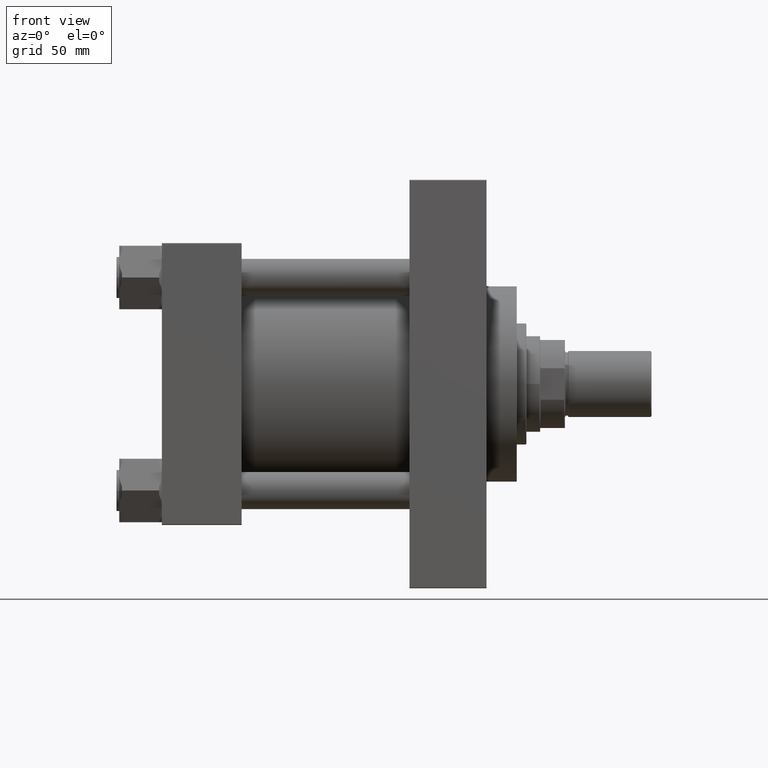
[diagram: clean part render]
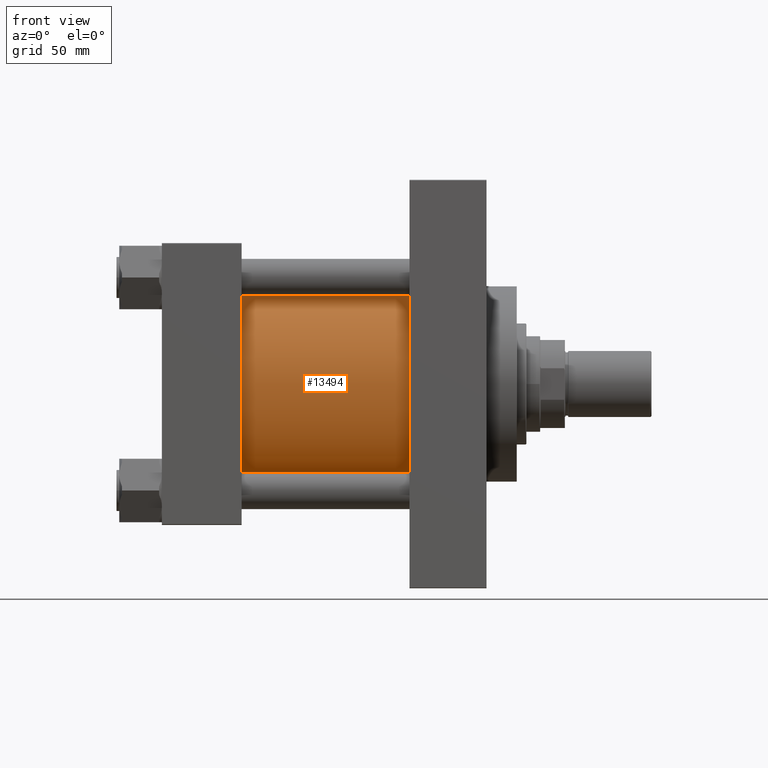
[diagram: same view with one face highlighted and labeled with its STEP entity id]
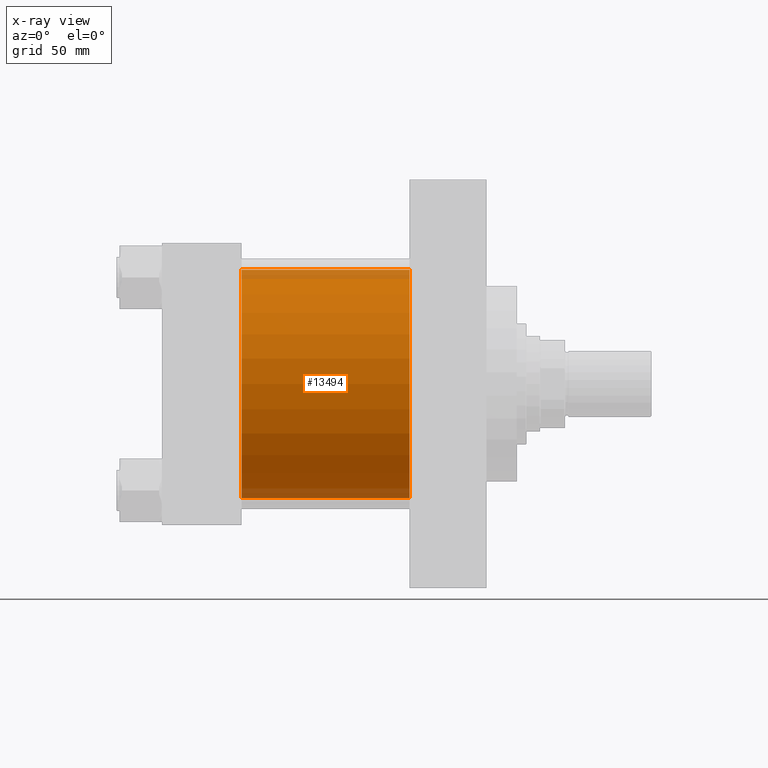
[diagram: x-ray of the same camera — body ghosted, the highlighted face saturated]
A machine part, front view. The second image highlights one B-rep face of the part: STEP entity #13494.
The next image is the same camera in x-ray: the body ghosted, the highlighted face saturated — about 8% of this face is hidden behind the body in this view.
In plain terms, the highlighted cylindrical surface (partial cylindrical patch) has radius 83 mm, axis along (-1, -0, -0).
Its self-contained STEP definition (entity closure, byte-faithful):
#226 = EDGE_CURVE ( 'NONE', #4685, #31504, #24607, .T. ) ;
#1190 = EDGE_CURVE ( 'NONE', #10335, #21470, #6214, .T. ) ;
#1395 = VECTOR ( 'NONE', #39092, 1000.000000000000000 ) ;
#4685 = VERTEX_POINT ( 'NONE', #8328 ) ;
#4808 = CARTESIAN_POINT ( 'NONE',  ( 57.99999999999999289, -2.602085213965210642E-15, 0.000000000000000000 ) ) ;
#6214 = LINE ( 'NONE', #24734, #1395 ) ;
#7473 = DIRECTION ( 'NONE',  ( 0.000000000000000000, 0.000000000000000000, -1.000000000000000000 ) ) ;
#8222 = DIRECTION ( 'NONE',  ( 0.000000000000000000, 0.000000000000000000, 1.000000000000000000 ) ) ;
#8328 = CARTESIAN_POINT ( 'NONE',  ( 180.0000000000000000, -2.602085213965210642E-15, 83.00000000000000000 ) ) ;
#9608 = CIRCLE ( 'NONE', #36839, 83.00000000000000000 ) ;
#10229 = CARTESIAN_POINT ( 'NONE',  ( 180.0000000000000000, 7.562483218957819277E-15, -83.00000000000000000 ) ) ;
#10335 = VERTEX_POINT ( 'NONE', #10229 ) ;
#11634 = DIRECTION ( 'NONE',  ( -1.000000000000000000, -0.000000000000000000, -0.000000000000000000 ) ) ;
#12695 = CIRCLE ( 'NONE', #32908, 83.00000000000000000 ) ;
#13494 = ADVANCED_FACE ( 'NONE', ( #38401 ), #15766, .T. ) ;
#14771 = DIRECTION ( 'NONE',  ( 1.000000000000000000, 0.000000000000000000, 0.000000000000000000 ) ) ;
#15766 = CYLINDRICAL_SURFACE ( 'NONE', #21902, 83.00000000000000000 ) ;
#15978 = CARTESIAN_POINT ( 'NONE',  ( 57.99999999999999289, 7.562483218957819277E-15, -83.00000000000000000 ) ) ;
#19668 = DIRECTION ( 'NONE',  ( 1.000000000000000000, -0.000000000000000000, -0.000000000000000000 ) ) ;
#21116 = CARTESIAN_POINT ( 'NONE',  ( 57.99999999999999289, -2.602085213965210642E-15, 83.00000000000000000 ) ) ;
#21470 = VERTEX_POINT ( 'NONE', #15978 ) ;
#21902 = AXIS2_PLACEMENT_3D ( 'NONE', #41812, #11634, #8222 ) ;
#24607 = LINE ( 'NONE', #47001, #30162 ) ;
#24734 = CARTESIAN_POINT ( 'NONE',  ( 180.0000000000000000, 7.562483218957819277E-15, -83.00000000000000000 ) ) ;
#29887 = ORIENTED_EDGE ( 'NONE', *, *, #38375, .T. ) ;
#29897 = CARTESIAN_POINT ( 'NONE',  ( 180.0000000000000000, -2.602085213965210642E-15, 0.000000000000000000 ) ) ;
#30162 = VECTOR ( 'NONE', #40165, 1000.000000000000000 ) ;
#31504 = VERTEX_POINT ( 'NONE', #21116 ) ;
#32908 = AXIS2_PLACEMENT_3D ( 'NONE', #4808, #19668, #34522 ) ;
#34522 = DIRECTION ( 'NONE',  ( 0.000000000000000000, 0.000000000000000000, 1.000000000000000000 ) ) ;
#36431 = EDGE_CURVE ( 'NONE', #4685, #10335, #9608, .T. ) ;
#36839 = AXIS2_PLACEMENT_3D ( 'NONE', #29897, #14771, #7473 ) ;
#38375 = EDGE_CURVE ( 'NONE', #31504, #21470, #12695, .T. ) ;
#38401 = FACE_OUTER_BOUND ( 'NONE', #47884, .T. ) ;
#39092 = DIRECTION ( 'NONE',  ( -1.000000000000000000, -0.000000000000000000, -0.000000000000000000 ) ) ;
#40165 = DIRECTION ( 'NONE',  ( -1.000000000000000000, -0.000000000000000000, -0.000000000000000000 ) ) ;
#41812 = CARTESIAN_POINT ( 'NONE',  ( 180.0000000000000000, -2.602085213965210642E-15, 0.000000000000000000 ) ) ;
#42019 = ORIENTED_EDGE ( 'NONE', *, *, #36431, .F. ) ;
#42492 = ORIENTED_EDGE ( 'NONE', *, *, #226, .T. ) ;
#47001 = CARTESIAN_POINT ( 'NONE',  ( 180.0000000000000000, -2.602085213965210642E-15, 83.00000000000000000 ) ) ;
#47884 = EDGE_LOOP ( 'NONE', ( #48070, #42019, #42492, #29887 ) ) ;
#48070 = ORIENTED_EDGE ( 'NONE', *, *, #1190, .F. ) ;